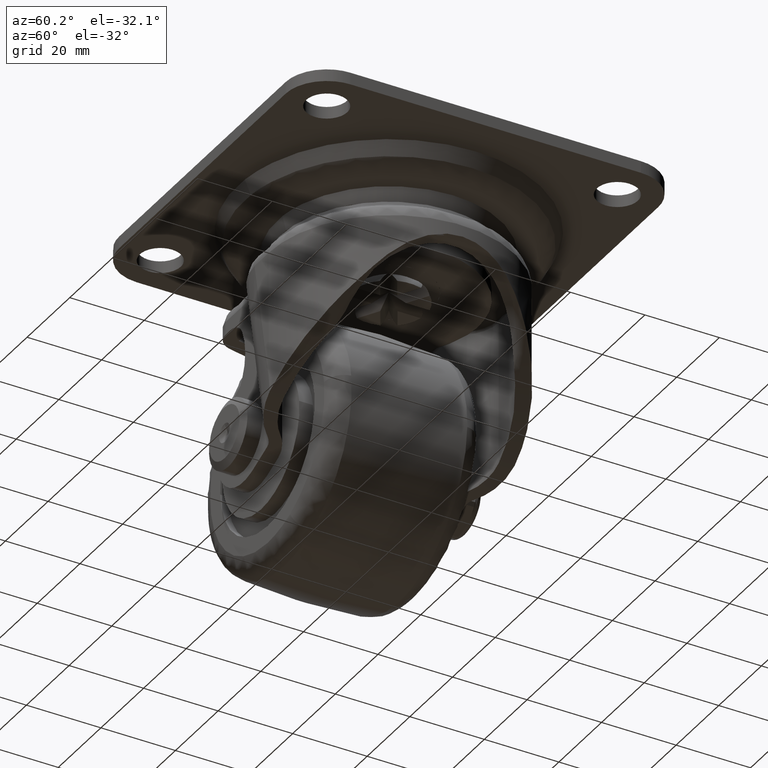
[diagram: clean part render]
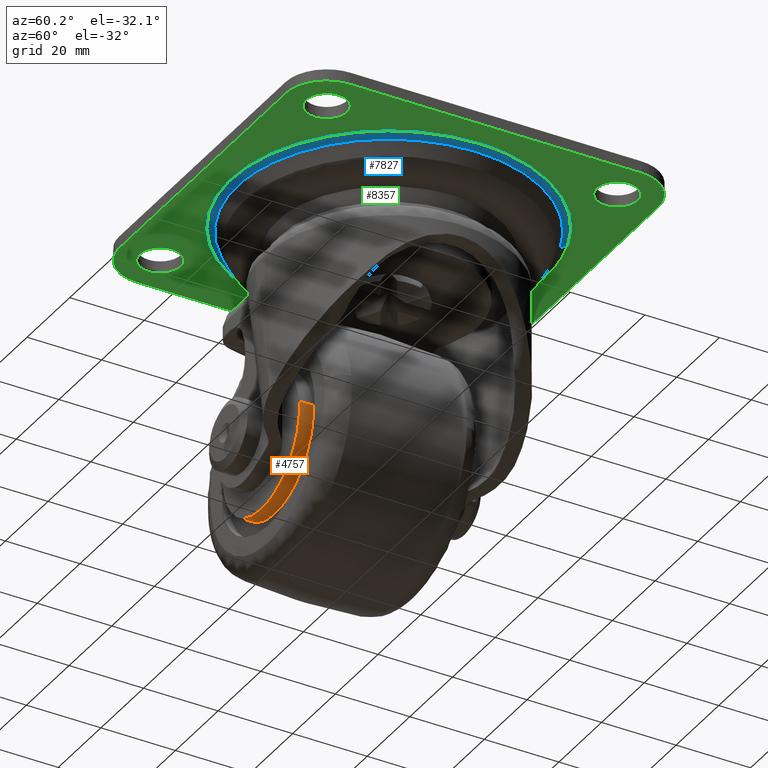
[diagram: same view with three faces highlighted in distinct colors, each labeled with its STEP entity id]
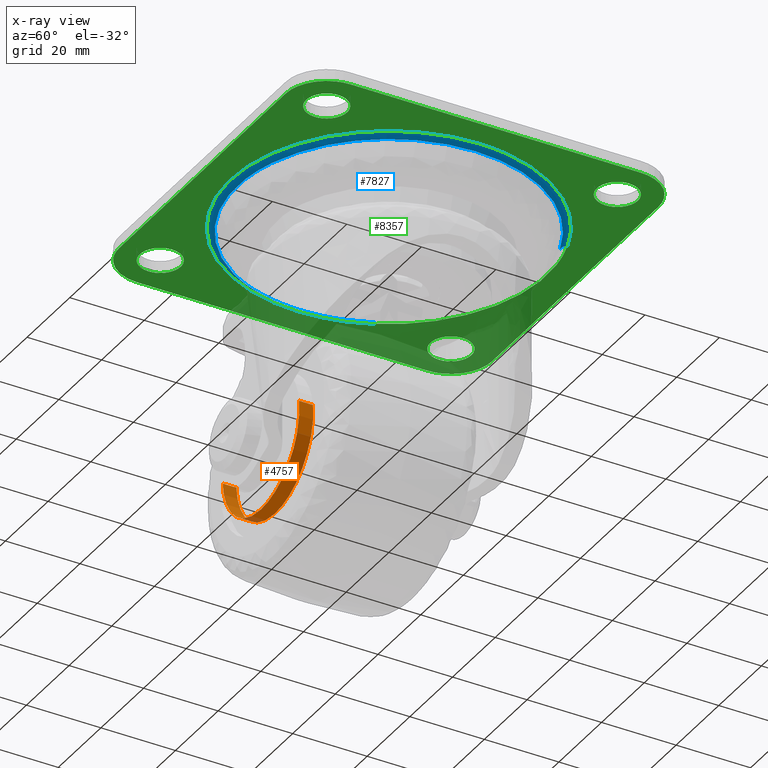
[diagram: x-ray of the same camera — body ghosted, the three highlighted faces saturated]
A machine part, auxiliary view with three faces highlighted in distinct colors.
The next image is the same camera in x-ray (body ghosted, the three faces saturated) — at least one of them is partly hidden behind the body in this view.
Their STEP definitions:

[orange] entity #4757 — the highlighted face is a freeform B-spline surface patch.
#4651=CARTESIAN_POINT('',(17.842643459764481,-21.792500000000008,-55.110141923961322));
#4652=CARTESIAN_POINT('',(17.858451913769652,-21.792500000000004,-55.243136774733770));
#4653=CARTESIAN_POINT('',(17.934977078074905,-21.792500000000008,-55.886934884516407));
#4654=CARTESIAN_POINT('',(17.966426371593599,-21.792500000000000,-56.401126288372573));
#4655=CARTESIAN_POINT('',(19.065300083221029,-21.792500000000000,-74.367552659966179));
#4656=CARTESIAN_POINT('',(1.098873711627426,-21.792500000000000,-75.466426371593599));
#4657=CARTESIAN_POINT('',(-16.867552659966176,-21.792500000000000,-76.565300083221018));
#4658=CARTESIAN_POINT('',(-17.974329302976994,-21.792500000000008,-58.469661925671524));
#4659=CARTESIAN_POINT('',(-17.982185289167688,-21.792500000000018,-58.341217686831406));
#4660=CARTESIAN_POINT('',(17.842643459764481,-17.905187499999997,-55.110141923961322));
#4661=CARTESIAN_POINT('',(17.858451913769652,-17.905187499999993,-55.243136774733770));
#4662=CARTESIAN_POINT('',(17.934977078074905,-17.905187499999997,-55.886934884516407));
#4663=CARTESIAN_POINT('',(17.966426371593599,-17.905187500000000,-56.401126288372573));
#4664=CARTESIAN_POINT('',(19.065300083221029,-17.905187500000004,-74.367552659966179));
#4665=CARTESIAN_POINT('',(1.098873711627426,-17.905187500000000,-75.466426371593599));
#4666=CARTESIAN_POINT('',(-16.867552659966176,-17.905187500000004,-76.565300083221018));
#4667=CARTESIAN_POINT('',(-17.974329302976994,-17.905187500000004,-58.469661925671524));
#4668=CARTESIAN_POINT('',(-17.982185289167688,-17.905187500000004,-58.341217686831406));
#4676=(BOUNDED_SURFACE()B_SPLINE_SURFACE(2,1,((#4651,#4660),(#4652,#4661),(#4653,#4662),(#4654,#4663),(#4655,#4664),(#4656,#4665),(#4657,#4666),(#4658,#4667),(#4659,#4668)),.UNSPECIFIED.,.F.,.F.,.U.)B_SPLINE_SURFACE_WITH_KNOTS((3,1,2,2,1,3),(2,2),(0.0,0.304178347177604,1.497113406812118,31.320489897674950,61.143866388537766,61.448100504643662),(0.0,3.887312500000011),.UNSPECIFIED.)GEOMETRIC_REPRESENTATION_ITEM()RATIONAL_B_SPLINE_SURFACE(((0.972009143955653,0.972009143955653),(0.974757472375390,0.974757472375390),(0.988284271247462,0.988284271247462),(1.0,1.0),(0.707106781186548,0.707106781186548),(1.0,1.0),(0.707106781186548,0.707106781186548),(1.002987861202316,1.002987861202316),(1.005975722404632,1.005975722404632)))REPRESENTATION_ITEM('')SURFACE());
#4677=CARTESIAN_POINT('',(17.874173578703068,-17.999999999999229,-55.375401478378720));
#4678=VERTEX_POINT('',#4677);
#4679=CARTESIAN_POINT('',(0.0,-18.0,-75.500000000000000));
#4680=VERTEX_POINT('',#4679);
#4681=CARTESIAN_POINT('',(17.874173578703061,-17.999999999999229,-55.375401478378720));
#4682=CARTESIAN_POINT('',(18.000000000000004,-18.000000000000004,-56.433974790937192));
#4683=CARTESIAN_POINT('',(18.0,-18.0,-57.500000000000000));
#4684=CARTESIAN_POINT('',(18.000000000000007,-18.000000000000007,-75.500000000000014));
#4685=CARTESIAN_POINT('',(0.0,-18.0,-75.500000000000000));
#4693=(BOUNDED_CURVE()B_SPLINE_CURVE(2,(#4681,#4682,#4683,#4684,#4685),.UNSPECIFIED.,.F.,.U.)B_SPLINE_CURVE_WITH_KNOTS((3,2,3),(0.229562640892888,0.250000000000000,0.500000000000000),.UNSPECIFIED.)CURVE()GEOMETRIC_REPRESENTATION_ITEM()RATIONAL_B_SPLINE_CURVE((0.956027082254396,0.976056144428286,1.0,0.707106781186547,1.0))REPRESENTATION_ITEM(''));
#4694=EDGE_CURVE('',#4678,#4680,#4693,.T.);
#4695=ORIENTED_EDGE('',*,*,#4694,.F.);
#4696=CARTESIAN_POINT('',(17.874173552712360,-21.699999999999999,-55.375401259717968));
#4697=VERTEX_POINT('',#4696);
#4698=CARTESIAN_POINT('',(17.874173552712360,-21.699999999999999,-55.375401259717968));
#4699=CARTESIAN_POINT('',(17.874173578703068,-17.999999999999229,-55.375401478378720));
#4700=QUASI_UNIFORM_CURVE('',1,(#4698,#4699),.UNSPECIFIED.,.F.,.U.);
#4701=EDGE_CURVE('',#4697,#4678,#4700,.T.);
#4702=ORIENTED_EDGE('',*,*,#4701,.F.);
#4703=CARTESIAN_POINT('',(0.0,-21.699999999999999,-75.500000000000000));
#4704=VERTEX_POINT('',#4703);
#4705=CARTESIAN_POINT('',(17.874173552712360,-21.699999999999996,-55.375401259717975));
#4706=CARTESIAN_POINT('',(18.0,-21.700000000000003,-56.433974680451030));
#4707=CARTESIAN_POINT('',(18.0,-21.699999999999999,-57.500000000000000));
#4708=CARTESIAN_POINT('',(18.000000000000007,-21.699999999999999,-75.500000000000014));
#4709=CARTESIAN_POINT('',(0.0,-21.699999999999999,-75.500000000000000));
#4717=(BOUNDED_CURVE()B_SPLINE_CURVE(2,(#4705,#4706,#4707,#4708,#4709),.UNSPECIFIED.,.F.,.U.)B_SPLINE_CURVE_WITH_KNOTS((3,2,3),(0.229562638825414,0.250000000000000,0.500000000000000),.UNSPECIFIED.)CURVE()GEOMETRIC_REPRESENTATION_ITEM()RATIONAL_B_SPLINE_CURVE((0.956027078202056,0.976056142006090,1.0,0.707106781186547,1.0))REPRESENTATION_ITEM(''));
#4718=EDGE_CURVE('',#4697,#4704,#4717,.T.);
#4719=ORIENTED_EDGE('',*,*,#4718,.T.);
#4720=CARTESIAN_POINT('',(-17.966428203972999,-21.699999999999999,-58.598843751669278));
#4721=VERTEX_POINT('',#4720);
#4722=CARTESIAN_POINT('',(0.0,-21.699999999999999,-75.500000000000000));
#4723=CARTESIAN_POINT('',(-16.932737493266956,-21.699999999999999,-75.500000000000000));
#4724=CARTESIAN_POINT('',(-17.966428203972995,-21.700000000000003,-58.598843751669278));
#4732=(BOUNDED_CURVE()B_SPLINE_CURVE(2,(#4722,#4723,#4724),.UNSPECIFIED.,.F.,.U.)B_SPLINE_CURVE_WITH_KNOTS((3,3),(0.500000000000000,0.739333249972850),.UNSPECIFIED.)CURVE()GEOMETRIC_REPRESENTATION_ITEM()RATIONAL_B_SPLINE_CURVE((1.0,0.719603656185469,0.976072658336030))REPRESENTATION_ITEM(''));
#4733=EDGE_CURVE('',#4704,#4721,#4732,.T.);
#4734=ORIENTED_EDGE('',*,*,#4733,.T.);
#4735=CARTESIAN_POINT('',(-17.966428226879739,-17.999999999998810,-58.598843377126677));
#4736=VERTEX_POINT('',#4735);
#4737=CARTESIAN_POINT('',(-17.966428203972999,-21.699999999999999,-58.598843751669278));
#4738=CARTESIAN_POINT('',(-17.966428226879739,-17.999999999998810,-58.598843377126677));
#4739=QUASI_UNIFORM_CURVE('',1,(#4737,#4738),.UNSPECIFIED.,.F.,.U.);
#4740=EDGE_CURVE('',#4721,#4736,#4739,.T.);
#4741=ORIENTED_EDGE('',*,*,#4740,.T.);
#4742=CARTESIAN_POINT('',(0.0,-18.0,-75.500000000000000));
#4743=CARTESIAN_POINT('',(-16.932737846919977,-18.000000000000007,-75.499999999999986));
#4744=CARTESIAN_POINT('',(-17.966428226879742,-17.999999999998806,-58.598843377126677));
#4752=(BOUNDED_CURVE()B_SPLINE_CURVE(2,(#4742,#4743,#4744),.UNSPECIFIED.,.F.,.U.)B_SPLINE_CURVE_WITH_KNOTS((3,3),(0.500000000000000,0.739333253569901),.UNSPECIFIED.)CURVE()GEOMETRIC_REPRESENTATION_ITEM()RATIONAL_B_SPLINE_CURVE((1.0,0.719603651971261,0.976072666045214))REPRESENTATION_ITEM(''));
#4753=EDGE_CURVE('',#4680,#4736,#4752,.T.);
#4754=ORIENTED_EDGE('',*,*,#4753,.F.);
#4755=EDGE_LOOP('',(#4695,#4702,#4719,#4734,#4741,#4754));
#4756=FACE_OUTER_BOUND('',#4755,.T.);
#4757=ADVANCED_FACE('',(#4756),#4676,.T.);

[blue] entity #7827 — the highlighted face is a freeform B-spline surface patch.
#5985=CARTESIAN_POINT('',(3.184360529721398,-40.461136844316670,-4.345675039741234));
#5986=VERTEX_POINT('',#5985);
#5992=CARTESIAN_POINT('',(-37.739710467579357,-14.931778210949810,-4.345675039742618));
#5993=VERTEX_POINT('',#5992);
#5994=CARTESIAN_POINT('',(3.184360529721398,-40.461136844316670,-4.345675039741234));
#5995=CARTESIAN_POINT('',(1.594638133456213,-40.586250710279998,-4.345675039742931));
#5996=CARTESIAN_POINT('',(0.0,-40.586250710279998,-4.345675039742931));
#5997=CARTESIAN_POINT('',(-27.589476437351475,-40.586250710280005,-4.345675039742930));
#5998=CARTESIAN_POINT('',(-37.739710467579364,-14.931778210949812,-4.345675039742617));
#6006=(BOUNDED_CURVE()B_SPLINE_CURVE(2,(#5994,#5995,#5996,#5997,#5998),.UNSPECIFIED.,.F.,.U.)B_SPLINE_CURVE_WITH_KNOTS((3,2,3),(0.736331300632689,0.750000000000000,0.937532549939446),.UNSPECIFIED.)CURVE()GEOMETRIC_REPRESENTATION_ITEM()RATIONAL_B_SPLINE_CURVE((0.969723356171653,0.983986122581260,1.0,0.780291951263764,0.890203187501340))REPRESENTATION_ITEM(''));
#6007=EDGE_CURVE('',#5986,#5993,#6006,.T.);
#6059=CARTESIAN_POINT('',(-40.586250710279998,0.0,-4.345675039742931));
#6060=VERTEX_POINT('',#6059);
#6061=CARTESIAN_POINT('',(-37.739710467579357,-14.931778210949812,-4.345675039742618));
#6062=CARTESIAN_POINT('',(-40.586250710279998,-7.737216178475551,-4.345675039742932));
#6063=CARTESIAN_POINT('',(-40.586250710279998,0.0,-4.345675039742931));
#6071=(BOUNDED_CURVE()B_SPLINE_CURVE(2,(#6061,#6062,#6063),.UNSPECIFIED.,.F.,.U.)B_SPLINE_CURVE_WITH_KNOTS((3,3),(0.937532549939447,1.0),.UNSPECIFIED.)CURVE()GEOMETRIC_REPRESENTATION_ITEM()RATIONAL_B_SPLINE_CURVE((0.890203187501341,0.926814829922784,1.0))REPRESENTATION_ITEM(''));
#6072=EDGE_CURVE('',#5993,#6060,#6071,.T.);
#6074=CARTESIAN_POINT('',(-36.723537601119311,17.280785074846360,-4.345675039060930));
#6075=VERTEX_POINT('',#6074);
#6076=CARTESIAN_POINT('',(-40.586250710279998,0.0,-4.345675039742931));
#6077=CARTESIAN_POINT('',(-40.586250710280012,9.072101875255141,-4.345675039742931));
#6078=CARTESIAN_POINT('',(-36.723537601119311,17.280785074846360,-4.345675039060930));
#6086=(BOUNDED_CURVE()B_SPLINE_CURVE(2,(#6076,#6077,#6078),.UNSPECIFIED.,.F.,.U.)B_SPLINE_CURVE_WITH_KNOTS((3,3),(0.0,0.072331535363557),.UNSPECIFIED.)CURVE()GEOMETRIC_REPRESENTATION_ITEM()RATIONAL_B_SPLINE_CURVE((1.0,0.915258335142595,0.879552628112391))REPRESENTATION_ITEM(''));
#6087=EDGE_CURVE('',#6060,#6075,#6086,.T.);
#6089=CARTESIAN_POINT('',(12.924949975057990,38.473229847753103,-4.345675038228174));
#6090=VERTEX_POINT('',#6089);
#6106=CARTESIAN_POINT('',(40.586250710279998,0.0,-4.345675039742931));
#6107=VERTEX_POINT('',#6106);
#6108=CARTESIAN_POINT('',(12.924949975057990,38.473229847753096,-4.345675038228174));
#6109=CARTESIAN_POINT('',(40.586250710279991,29.180510476585447,-4.345675039742931));
#6110=CARTESIAN_POINT('',(40.586250710279998,0.0,-4.345675039742931));
#6118=(BOUNDED_CURVE()B_SPLINE_CURVE(2,(#6108,#6109,#6110),.UNSPECIFIED.,.F.,.U.)B_SPLINE_CURVE_WITH_KNOTS((3,3),(0.304134442289339,0.500000000000000),.UNSPECIFIED.)CURVE()GEOMETRIC_REPRESENTATION_ITEM()RATIONAL_B_SPLINE_CURVE((0.900621820758164,0.770529225389729,1.0))REPRESENTATION_ITEM(''));
#6119=EDGE_CURVE('',#6090,#6107,#6118,.T.);
#6121=CARTESIAN_POINT('',(40.586250710279998,0.0,-4.345675039742931));
#6122=CARTESIAN_POINT('',(40.586250710279984,-37.517544248621746,-4.345675039742932));
#6123=CARTESIAN_POINT('',(3.184360529721398,-40.461136844316670,-4.345675039741234));
#6131=(BOUNDED_CURVE()B_SPLINE_CURVE(2,(#6121,#6122,#6123),.UNSPECIFIED.,.F.,.U.)B_SPLINE_CURVE_WITH_KNOTS((3,3),(0.500000000000000,0.736331300632688),.UNSPECIFIED.)CURVE()GEOMETRIC_REPRESENTATION_ITEM()RATIONAL_B_SPLINE_CURVE((1.0,0.723120658605289,0.969723356171652))REPRESENTATION_ITEM(''));
#6132=EDGE_CURVE('',#6107,#5986,#6131,.T.);
#7710=CARTESIAN_POINT('',(12.911361618614468,38.432767524562884,-4.442584820417171));
#7711=CARTESIAN_POINT('',(15.137609367942042,37.684866928389972,-4.442584820417170));
#7712=CARTESIAN_POINT('',(17.262611514969574,36.684916820499474,-4.442584820417169));
#7713=CARTESIAN_POINT('',(53.947528335469038,19.422305305529903,-4.442584820417168));
#7714=CARTESIAN_POINT('',(36.684916820499474,-17.262611514969574,-4.442584820417169));
#7715=CARTESIAN_POINT('',(19.422305305529903,-53.947528335469038,-4.442584820417168));
#7716=CARTESIAN_POINT('',(-17.262611514969574,-36.684916820499474,-4.442584820417169));
#7717=CARTESIAN_POINT('',(-53.947528335469038,-19.422305305529903,-4.442584820417168));
#7718=CARTESIAN_POINT('',(-36.684916820499474,17.262611514969564,-4.442584820417169));
#7719=CARTESIAN_POINT('',(13.082746138751203,38.942921419581033,-3.127357144926398));
#7720=CARTESIAN_POINT('',(15.338544946556913,38.185093242679535,-3.127357144926397));
#7721=CARTESIAN_POINT('',(17.491754224947957,37.171869866293896,-3.127357144926398));
#7722=CARTESIAN_POINT('',(54.663624091241864,19.680115641345953,-3.127357144926397));
#7723=CARTESIAN_POINT('',(37.171869866293896,-17.491754224947943,-3.127357144926398));
#7724=CARTESIAN_POINT('',(19.680115641345953,-54.663624091241864,-3.127357144926397));
#7725=CARTESIAN_POINT('',(-17.491754224947943,-37.171869866293910,-3.127357144926398));
#7726=CARTESIAN_POINT('',(-54.663624091241864,-19.680115641345971,-3.127357144926397));
#7727=CARTESIAN_POINT('',(-37.171869866293910,17.491754224947943,-3.127357144926398));
#7728=CARTESIAN_POINT('',(13.534658023324662,40.288110634664172,-3.202823116906489));
#7729=CARTESIAN_POINT('',(15.868377955613120,39.504105112733235,-3.202823116906488));
#7730=CARTESIAN_POINT('',(18.095964650836891,38.455882380657293,-3.202823116906489));
#7731=CARTESIAN_POINT('',(56.551847031494169,20.359917729820399,-3.202823116906488));
#7732=CARTESIAN_POINT('',(38.455882380657293,-18.095964650836891,-3.202823116906489));
#7733=CARTESIAN_POINT('',(20.359917729820399,-56.551847031494169,-3.202823116906488));
#7734=CARTESIAN_POINT('',(-18.095964650836880,-38.455882380657293,-3.202823116906489));
#7735=CARTESIAN_POINT('',(-56.551847031494169,-20.359917729820399,-3.202823116906488));
#7736=CARTESIAN_POINT('',(-38.455882380657293,18.095964650836880,-3.202823116906489));
#7744=(BOUNDED_SURFACE()B_SPLINE_SURFACE(2,2,((#7710,#7719,#7728),(#7711,#7720,#7729),(#7712,#7721,#7730),(#7713,#7722,#7731),(#7714,#7723,#7732),(#7715,#7724,#7733),(#7716,#7725,#7734),(#7717,#7726,#7735),(#7718,#7727,#7736)),.UNSPECIFIED.,.F.,.F.,.U.)B_SPLINE_SURFACE_WITH_KNOTS((3,2,2,2,3),(3,3),(0.0,5.633406402039420,76.051053583033720,146.468700764028000,216.886347945022290),(0.0,2.552755658797147),.UNSPECIFIED.)GEOMETRIC_REPRESENTATION_ITEM()RATIONAL_B_SPLINE_SURFACE(((0.882743036280426,0.718345380574617,0.879689439059385),(0.900900378691654,0.733121190191396,0.897783971334424),(0.922516258587970,0.750711436539873,0.919325077272670),(0.652317502202397,0.530833147491639,0.650060996254352),(0.922516258587970,0.750711436539873,0.919325077272670),(0.652317502202397,0.530833147491639,0.650060996254352),(0.922516258587970,0.750711436539873,0.919325077272670),(0.652317502202397,0.530833147491639,0.650060996254352),(0.922516258587970,0.750711436539873,0.919325077272670)))REPRESENTATION_ITEM('')SURFACE());
#7745=ORIENTED_EDGE('',*,*,#6119,.F.);
#7746=CARTESIAN_POINT('',(13.500830320760921,40.187431987613181,-3.200000500000001));
#7747=VERTEX_POINT('',#7746);
#7748=CARTESIAN_POINT('',(12.924949975057988,38.473229847753110,-4.345675038228175));
#7749=CARTESIAN_POINT('',(13.097316249135902,38.986306284760040,-3.200001000761956));
#7750=CARTESIAN_POINT('',(13.500830320760924,40.187431987613188,-3.200000500000001));
#7758=(BOUNDED_CURVE()B_SPLINE_CURVE(2,(#7748,#7749,#7750),.UNSPECIFIED.,.F.,.U.)B_SPLINE_CURVE_WITH_KNOTS((3,3),(-1.661306527101288,-0.352191795974391),.UNSPECIFIED.)CURVE()GEOMETRIC_REPRESENTATION_ITEM()RATIONAL_B_SPLINE_CURVE((0.868483051895807,0.732466660224545,0.865706739969151))REPRESENTATION_ITEM(''));
#7759=EDGE_CURVE('',#6090,#7747,#7758,.T.);
#7760=ORIENTED_EDGE('',*,*,#7759,.T.);
#7761=CARTESIAN_POINT('',(42.394599999999997,0.0,-3.200000000000000));
#7762=VERTEX_POINT('',#7761);
#7763=CARTESIAN_POINT('',(13.500830320760921,40.187431987613188,-3.200000500000000));
#7764=CARTESIAN_POINT('',(42.394599999999983,30.480668891571192,-3.200000000000000));
#7765=CARTESIAN_POINT('',(42.394599999999997,0.0,-3.200000000000000));
#7773=(BOUNDED_CURVE()B_SPLINE_CURVE(2,(#7763,#7764,#7765),.UNSPECIFIED.,.F.,.U.)B_SPLINE_CURVE_WITH_KNOTS((3,3),(0.304134442289376,0.500000000000000),.UNSPECIFIED.)CURVE()GEOMETRIC_REPRESENTATION_ITEM()RATIONAL_B_SPLINE_CURVE((0.900621820758114,0.770529225389774,1.0))REPRESENTATION_ITEM(''));
#7774=EDGE_CURVE('',#7747,#7762,#7773,.T.);
#7775=ORIENTED_EDGE('',*,*,#7774,.T.);
#7776=CARTESIAN_POINT('',(-42.394599999999997,0.0,-3.200000000000000));
#7777=VERTEX_POINT('',#7776);
#7778=CARTESIAN_POINT('',(42.394599999999997,0.0,-3.200000000000000));
#7779=CARTESIAN_POINT('',(42.394600000000004,-42.394600000000004,-3.200000000000000));
#7780=CARTESIAN_POINT('',(0.0,-42.394599999999997,-3.200000000000000));
#7781=CARTESIAN_POINT('',(-42.394600000000004,-42.394600000000004,-3.200000000000000));
#7782=CARTESIAN_POINT('',(-42.394599999999997,0.0,-3.200000000000000));
#7790=(BOUNDED_CURVE()B_SPLINE_CURVE(2,(#7778,#7779,#7780,#7781,#7782),.UNSPECIFIED.,.F.,.U.)B_SPLINE_CURVE_WITH_KNOTS((3,2,3),(0.500000000000000,0.750000000000000,1.0),.UNSPECIFIED.)CURVE()GEOMETRIC_REPRESENTATION_ITEM()RATIONAL_B_SPLINE_CURVE((1.0,0.707106781186548,1.0,0.707106781186548,1.0))REPRESENTATION_ITEM(''));
#7791=EDGE_CURVE('',#7762,#7777,#7790,.T.);
#7792=ORIENTED_EDGE('',*,*,#7791,.T.);
#7793=CARTESIAN_POINT('',(-38.359780954705613,18.050742752532361,-3.200000500000001));
#7794=VERTEX_POINT('',#7793);
#7795=CARTESIAN_POINT('',(-42.394599999999997,0.0,-3.200000000000000));
#7796=CARTESIAN_POINT('',(-42.394600000000004,9.476315831947286,-3.200000000000000));
#7797=CARTESIAN_POINT('',(-38.359780954705606,18.050742752532361,-3.200000500000001));
#7805=(BOUNDED_CURVE()B_SPLINE_CURVE(2,(#7795,#7796,#7797),.UNSPECIFIED.,.F.,.U.)B_SPLINE_CURVE_WITH_KNOTS((3,3),(0.0,0.072331535364334),.UNSPECIFIED.)CURVE()GEOMETRIC_REPRESENTATION_ITEM()RATIONAL_B_SPLINE_CURVE((1.0,0.915258335141684,0.879552628111623))REPRESENTATION_ITEM(''));
#7806=EDGE_CURVE('',#7777,#7794,#7805,.T.);
#7807=ORIENTED_EDGE('',*,*,#7806,.T.);
#7808=CARTESIAN_POINT('',(-36.723537601119311,17.280785074846367,-4.345675039060930));
#7809=CARTESIAN_POINT('',(-37.213280255861712,17.511240475149648,-3.200001005214054));
#7810=CARTESIAN_POINT('',(-38.359780954705599,18.050742752532358,-3.200000500000002));
#7818=(BOUNDED_CURVE()B_SPLINE_CURVE(2,(#7808,#7809,#7810),.UNSPECIFIED.,.F.,.U.)B_SPLINE_CURVE_WITH_KNOTS((3,3),(-1.661306528229544,-0.352191800264891),.UNSPECIFIED.)CURVE()GEOMETRIC_REPRESENTATION_ITEM()RATIONAL_B_SPLINE_CURVE((0.907613806512775,0.765469000574998,0.904712402697115))REPRESENTATION_ITEM(''));
#7819=EDGE_CURVE('',#6075,#7794,#7818,.T.);
#7820=ORIENTED_EDGE('',*,*,#7819,.F.);
#7821=ORIENTED_EDGE('',*,*,#6087,.F.);
#7822=ORIENTED_EDGE('',*,*,#6072,.F.);
#7823=ORIENTED_EDGE('',*,*,#6007,.F.);
#7824=ORIENTED_EDGE('',*,*,#6132,.F.);
#7825=EDGE_LOOP('',(#7745,#7760,#7775,#7792,#7807,#7820,#7821,#7822,#7823,#7824));
#7826=FACE_OUTER_BOUND('',#7825,.T.);
#7827=ADVANCED_FACE('',(#7826),#7744,.F.);

[green] entity #8357 — the highlighted face is a freeform B-spline surface patch.
#6254=CARTESIAN_POINT('',(-38.664233032356691,44.489741391307938,-3.200000000000000));
#6255=VERTEX_POINT('',#6254);
#6261=CARTESIAN_POINT('',(-33.500000000000000,39.0,-3.200000000000000));
#6262=VERTEX_POINT('',#6261);
#6263=CARTESIAN_POINT('',(-33.500000000000000,39.0,-3.200000000000000));
#6264=CARTESIAN_POINT('',(-33.500000000000000,44.173883367600588,-3.200000000000000));
#6265=CARTESIAN_POINT('',(-38.664233032356691,44.489741391307938,-3.200000000000000));
#6273=(BOUNDED_CURVE()B_SPLINE_CURVE(2,(#6263,#6264,#6265),.UNSPECIFIED.,.F.,.U.)B_SPLINE_CURVE_WITH_KNOTS((3,3),(0.500000000000000,0.739332962229295),.UNSPECIFIED.)CURVE()GEOMETRIC_REPRESENTATION_ITEM()RATIONAL_B_SPLINE_CURVE((1.0,0.719603993298013,0.976072041646040))REPRESENTATION_ITEM(''));
#6274=EDGE_CURVE('',#6262,#6255,#6273,.T.);
#6276=CARTESIAN_POINT('',(-39.649179250865487,33.538446530504089,-3.200000000000000));
#6277=VERTEX_POINT('',#6276);
#6278=CARTESIAN_POINT('',(-39.649179250865494,33.538446530504096,-3.200000000000000));
#6279=CARTESIAN_POINT('',(-39.325728090429756,33.500000000000000,-3.200000000000001));
#6280=CARTESIAN_POINT('',(-39.0,33.500000000000000,-3.200000000000000));
#6281=CARTESIAN_POINT('',(-33.500000000000007,33.500000000000007,-3.200000000000000));
#6282=CARTESIAN_POINT('',(-33.500000000000000,39.0,-3.200000000000000));
#6290=(BOUNDED_CURVE()B_SPLINE_CURVE(2,(#6278,#6279,#6280,#6281,#6282),.UNSPECIFIED.,.F.,.U.)B_SPLINE_CURVE_WITH_KNOTS((3,2,3),(0.229562753243201,0.250000000000000,0.500000000000000),.UNSPECIFIED.)CURVE()GEOMETRIC_REPRESENTATION_ITEM()RATIONAL_B_SPLINE_CURVE((0.956027302466078,0.976056276054866,1.0,0.707106781186548,1.0))REPRESENTATION_ITEM(''));
#6291=EDGE_CURVE('',#6277,#6262,#6290,.T.);
#6339=CARTESIAN_POINT('',(-44.500000000000000,39.0,-3.200000000000000));
#6340=VERTEX_POINT('',#6339);
#6341=CARTESIAN_POINT('',(-44.500000000000000,39.0,-3.200000000000000));
#6342=CARTESIAN_POINT('',(-44.499999999999993,34.115031964951029,-3.200000000000001));
#6343=CARTESIAN_POINT('',(-39.649179250865487,33.538446530504089,-3.200000000000000));
#6351=(BOUNDED_CURVE()B_SPLINE_CURVE(2,(#6341,#6342,#6343),.UNSPECIFIED.,.F.,.U.)B_SPLINE_CURVE_WITH_KNOTS((3,3),(0.0,0.229562753243201),.UNSPECIFIED.)CURVE()GEOMETRIC_REPRESENTATION_ITEM()RATIONAL_B_SPLINE_CURVE((1.0,0.731050505131682,0.956027302466078))REPRESENTATION_ITEM(''));
#6352=EDGE_CURVE('',#6340,#6277,#6351,.T.);
#6354=CARTESIAN_POINT('',(-38.664233032356691,44.489741391307938,-3.200000000000000));
#6355=CARTESIAN_POINT('',(-38.831959801655600,44.499999999999993,-3.200000000000001));
#6356=CARTESIAN_POINT('',(-39.0,44.500000000000000,-3.200000000000000));
#6357=CARTESIAN_POINT('',(-44.500000000000007,44.500000000000007,-3.200000000000000));
#6358=CARTESIAN_POINT('',(-44.500000000000000,39.0,-3.200000000000000));
#6366=(BOUNDED_CURVE()B_SPLINE_CURVE(2,(#6354,#6355,#6356,#6357,#6358),.UNSPECIFIED.,.F.,.U.)B_SPLINE_CURVE_WITH_KNOTS((3,2,3),(0.739332962229296,0.750000000000000,1.0),.UNSPECIFIED.)CURVE()GEOMETRIC_REPRESENTATION_ITEM()RATIONAL_B_SPLINE_CURVE((0.976072041646042,0.987502787888535,1.0,0.707106781186548,1.0))REPRESENTATION_ITEM(''));
#6367=EDGE_CURVE('',#6255,#6340,#6366,.T.);
#6444=CARTESIAN_POINT('',(39.335766967643309,44.489741391307938,-3.200000000000000));
#6445=VERTEX_POINT('',#6444);
#6451=CARTESIAN_POINT('',(44.500000000000000,39.0,-3.200000000000000));
#6452=VERTEX_POINT('',#6451);
#6453=CARTESIAN_POINT('',(44.500000000000000,39.0,-3.200000000000000));
#6454=CARTESIAN_POINT('',(44.500000000000007,44.173883367600588,-3.200000000000000));
#6455=CARTESIAN_POINT('',(39.335766967643316,44.489741391307938,-3.200000000000000));
#6463=(BOUNDED_CURVE()B_SPLINE_CURVE(2,(#6453,#6454,#6455),.UNSPECIFIED.,.F.,.U.)B_SPLINE_CURVE_WITH_KNOTS((3,3),(0.500000000000000,0.739332962229295),.UNSPECIFIED.)CURVE()GEOMETRIC_REPRESENTATION_ITEM()RATIONAL_B_SPLINE_CURVE((1.0,0.719603993298013,0.976072041646040))REPRESENTATION_ITEM(''));
#6464=EDGE_CURVE('',#6452,#6445,#6463,.T.);
#6466=CARTESIAN_POINT('',(38.350820749134499,33.538446530504089,-3.200000000000000));
#6467=VERTEX_POINT('',#6466);
#6468=CARTESIAN_POINT('',(38.350820749134499,33.538446530504089,-3.200000000000000));
#6469=CARTESIAN_POINT('',(38.674271909570237,33.500000000000000,-3.200000000000000));
#6470=CARTESIAN_POINT('',(39.0,33.500000000000000,-3.200000000000000));
#6471=CARTESIAN_POINT('',(44.500000000000007,33.500000000000007,-3.200000000000000));
#6472=CARTESIAN_POINT('',(44.500000000000000,39.0,-3.200000000000000));
#6480=(BOUNDED_CURVE()B_SPLINE_CURVE(2,(#6468,#6469,#6470,#6471,#6472),.UNSPECIFIED.,.F.,.U.)B_SPLINE_CURVE_WITH_KNOTS((3,2,3),(0.229562753243201,0.250000000000000,0.500000000000000),.UNSPECIFIED.)CURVE()GEOMETRIC_REPRESENTATION_ITEM()RATIONAL_B_SPLINE_CURVE((0.956027302466077,0.976056276054865,1.0,0.707106781186548,1.0))REPRESENTATION_ITEM(''));
#6481=EDGE_CURVE('',#6467,#6452,#6480,.T.);
#6529=CARTESIAN_POINT('',(33.500000000000000,39.0,-3.200000000000000));
#6530=VERTEX_POINT('',#6529);
#6531=CARTESIAN_POINT('',(33.500000000000000,39.0,-3.200000000000000));
#6532=CARTESIAN_POINT('',(33.500000000000007,34.115031964951037,-3.199999999999999));
#6533=CARTESIAN_POINT('',(38.350820749134499,33.538446530504089,-3.200000000000001));
#6541=(BOUNDED_CURVE()B_SPLINE_CURVE(2,(#6531,#6532,#6533),.UNSPECIFIED.,.F.,.U.)B_SPLINE_CURVE_WITH_KNOTS((3,3),(0.0,0.229562753243201),.UNSPECIFIED.)CURVE()GEOMETRIC_REPRESENTATION_ITEM()RATIONAL_B_SPLINE_CURVE((1.0,0.731050505131683,0.956027302466077))REPRESENTATION_ITEM(''));
#6542=EDGE_CURVE('',#6530,#6467,#6541,.T.);
#6544=CARTESIAN_POINT('',(39.335766967643309,44.489741391307938,-3.200000000000001));
#6545=CARTESIAN_POINT('',(39.168040198344400,44.500000000000000,-3.200000000000000));
#6546=CARTESIAN_POINT('',(39.0,44.500000000000000,-3.200000000000000));
#6547=CARTESIAN_POINT('',(33.500000000000007,44.500000000000007,-3.200000000000000));
#6548=CARTESIAN_POINT('',(33.500000000000000,39.0,-3.200000000000000));
#6556=(BOUNDED_CURVE()B_SPLINE_CURVE(2,(#6544,#6545,#6546,#6547,#6548),.UNSPECIFIED.,.F.,.U.)B_SPLINE_CURVE_WITH_KNOTS((3,2,3),(0.739332962229296,0.750000000000000,1.0),.UNSPECIFIED.)CURVE()GEOMETRIC_REPRESENTATION_ITEM()RATIONAL_B_SPLINE_CURVE((0.976072041646042,0.987502787888535,1.0,0.707106781186548,1.0))REPRESENTATION_ITEM(''));
#6557=EDGE_CURVE('',#6445,#6530,#6556,.T.);
#6634=CARTESIAN_POINT('',(39.335766967643309,-33.510260508692113,-3.200000000000000));
#6635=VERTEX_POINT('',#6634);
#6641=CARTESIAN_POINT('',(44.500000000000000,-39.000001900000044,-3.200000000000000));
#6642=VERTEX_POINT('',#6641);
#6643=CARTESIAN_POINT('',(44.500000000000000,-39.000001900000044,-3.200000000000000));
#6644=CARTESIAN_POINT('',(44.500000000000007,-33.826118532399448,-3.200000000000000));
#6645=CARTESIAN_POINT('',(39.335766967643316,-33.510260508692113,-3.200000000000000));
#6653=(BOUNDED_CURVE()B_SPLINE_CURVE(2,(#6643,#6644,#6645),.UNSPECIFIED.,.F.,.U.)B_SPLINE_CURVE_WITH_KNOTS((3,3),(0.500000000000000,0.739332962229295),.UNSPECIFIED.)CURVE()GEOMETRIC_REPRESENTATION_ITEM()RATIONAL_B_SPLINE_CURVE((1.0,0.719603993298013,0.976072041646040))REPRESENTATION_ITEM(''));
#6654=EDGE_CURVE('',#6642,#6635,#6653,.T.);
#6656=CARTESIAN_POINT('',(38.350820749134499,-44.461555369495947,-3.200000000000000));
#6657=VERTEX_POINT('',#6656);
#6658=CARTESIAN_POINT('',(38.350820749134499,-44.461555369495954,-3.200000000000000));
#6659=CARTESIAN_POINT('',(38.674271909570230,-44.500001900000036,-3.200000000000001));
#6660=CARTESIAN_POINT('',(39.0,-44.500001900000044,-3.200000000000000));
#6661=CARTESIAN_POINT('',(44.500000000000007,-44.500001900000036,-3.200000000000000));
#6662=CARTESIAN_POINT('',(44.500000000000000,-39.000001900000044,-3.200000000000000));
#6670=(BOUNDED_CURVE()B_SPLINE_CURVE(2,(#6658,#6659,#6660,#6661,#6662),.UNSPECIFIED.,.F.,.U.)B_SPLINE_CURVE_WITH_KNOTS((3,2,3),(0.229562753243201,0.250000000000000,0.500000000000000),.UNSPECIFIED.)CURVE()GEOMETRIC_REPRESENTATION_ITEM()RATIONAL_B_SPLINE_CURVE((0.956027302466077,0.976056276054865,1.0,0.707106781186548,1.0))REPRESENTATION_ITEM(''));
#6671=EDGE_CURVE('',#6657,#6642,#6670,.T.);
#6719=CARTESIAN_POINT('',(33.500000000000000,-39.000001900000044,-3.200000000000000));
#6720=VERTEX_POINT('',#6719);
#6721=CARTESIAN_POINT('',(33.500000000000000,-39.000001900000044,-3.200000000000000));
#6722=CARTESIAN_POINT('',(33.499999999999993,-43.884969935049014,-3.200000000000000));
#6723=CARTESIAN_POINT('',(38.350820749134499,-44.461555369495954,-3.200000000000000));
#6731=(BOUNDED_CURVE()B_SPLINE_CURVE(2,(#6721,#6722,#6723),.UNSPECIFIED.,.F.,.U.)B_SPLINE_CURVE_WITH_KNOTS((3,3),(0.0,0.229562753243201),.UNSPECIFIED.)CURVE()GEOMETRIC_REPRESENTATION_ITEM()RATIONAL_B_SPLINE_CURVE((1.0,0.731050505131683,0.956027302466077))REPRESENTATION_ITEM(''));
#6732=EDGE_CURVE('',#6720,#6657,#6731,.T.);
#6734=CARTESIAN_POINT('',(39.335766967643309,-33.510260508692113,-3.200000000000000));
#6735=CARTESIAN_POINT('',(39.168040198344407,-33.500001900000065,-3.200000000000001));
#6736=CARTESIAN_POINT('',(39.0,-33.500001900000051,-3.200000000000000));
#6737=CARTESIAN_POINT('',(33.500000000000007,-33.500001900000065,-3.200000000000000));
#6738=CARTESIAN_POINT('',(33.500000000000000,-39.000001900000044,-3.200000000000000));
#6746=(BOUNDED_CURVE()B_SPLINE_CURVE(2,(#6734,#6735,#6736,#6737,#6738),.UNSPECIFIED.,.F.,.U.)B_SPLINE_CURVE_WITH_KNOTS((3,2,3),(0.739332962229296,0.750000000000000,1.0),.UNSPECIFIED.)CURVE()GEOMETRIC_REPRESENTATION_ITEM()RATIONAL_B_SPLINE_CURVE((0.976072041646042,0.987502787888535,1.0,0.707106781186548,1.0))REPRESENTATION_ITEM(''));
#6747=EDGE_CURVE('',#6635,#6720,#6746,.T.);
#6824=CARTESIAN_POINT('',(-38.664233032356691,-33.510260508692113,-3.200000000000000));
#6825=VERTEX_POINT('',#6824);
#6831=CARTESIAN_POINT('',(-33.500000000000000,-39.000001900000044,-3.200000000000000));
#6832=VERTEX_POINT('',#6831);
#6833=CARTESIAN_POINT('',(-33.500000000000000,-39.000001900000044,-3.200000000000000));
#6834=CARTESIAN_POINT('',(-33.500000000000000,-33.826118532399448,-3.200000000000000));
#6835=CARTESIAN_POINT('',(-38.664233032356691,-33.510260508692113,-3.200000000000000));
#6843=(BOUNDED_CURVE()B_SPLINE_CURVE(2,(#6833,#6834,#6835),.UNSPECIFIED.,.F.,.U.)B_SPLINE_CURVE_WITH_KNOTS((3,3),(0.500000000000000,0.739332962229295),.UNSPECIFIED.)CURVE()GEOMETRIC_REPRESENTATION_ITEM()RATIONAL_B_SPLINE_CURVE((1.0,0.719603993298013,0.976072041646040))REPRESENTATION_ITEM(''));
#6844=EDGE_CURVE('',#6832,#6825,#6843,.T.);
#6846=CARTESIAN_POINT('',(-39.649179250865487,-44.461555369495947,-3.200000000000000));
#6847=VERTEX_POINT('',#6846);
#6848=CARTESIAN_POINT('',(-39.649179250865487,-44.461555369495954,-3.200000000000000));
#6849=CARTESIAN_POINT('',(-39.325728090429763,-44.500001900000051,-3.200000000000000));
#6850=CARTESIAN_POINT('',(-39.0,-44.500001900000044,-3.200000000000000));
#6851=CARTESIAN_POINT('',(-33.500000000000007,-44.500001900000036,-3.200000000000000));
#6852=CARTESIAN_POINT('',(-33.500000000000000,-39.000001900000044,-3.200000000000000));
#6860=(BOUNDED_CURVE()B_SPLINE_CURVE(2,(#6848,#6849,#6850,#6851,#6852),.UNSPECIFIED.,.F.,.U.)B_SPLINE_CURVE_WITH_KNOTS((3,2,3),(0.229562753243201,0.250000000000000,0.500000000000000),.UNSPECIFIED.)CURVE()GEOMETRIC_REPRESENTATION_ITEM()RATIONAL_B_SPLINE_CURVE((0.956027302466078,0.976056276054866,1.0,0.707106781186548,1.0))REPRESENTATION_ITEM(''));
#6861=EDGE_CURVE('',#6847,#6832,#6860,.T.);
#6909=CARTESIAN_POINT('',(-44.500000000000000,-39.000001900000044,-3.200000000000000));
#6910=VERTEX_POINT('',#6909);
#6911=CARTESIAN_POINT('',(-44.500000000000000,-39.000001900000044,-3.200000000000000));
#6912=CARTESIAN_POINT('',(-44.499999999999993,-43.884969935049021,-3.200000000000000));
#6913=CARTESIAN_POINT('',(-39.649179250865487,-44.461555369495954,-3.200000000000001));
#6921=(BOUNDED_CURVE()B_SPLINE_CURVE(2,(#6911,#6912,#6913),.UNSPECIFIED.,.F.,.U.)B_SPLINE_CURVE_WITH_KNOTS((3,3),(0.0,0.229562753243201),.UNSPECIFIED.)CURVE()GEOMETRIC_REPRESENTATION_ITEM()RATIONAL_B_SPLINE_CURVE((1.0,0.731050505131682,0.956027302466078))REPRESENTATION_ITEM(''));
#6922=EDGE_CURVE('',#6910,#6847,#6921,.T.);
#6924=CARTESIAN_POINT('',(-38.664233032356691,-33.510260508692113,-3.200000000000000));
#6925=CARTESIAN_POINT('',(-38.831959801655600,-33.500001900000065,-3.200000000000001));
#6926=CARTESIAN_POINT('',(-39.0,-33.500001900000051,-3.200000000000000));
#6927=CARTESIAN_POINT('',(-44.500000000000007,-33.500001900000065,-3.200000000000000));
#6928=CARTESIAN_POINT('',(-44.500000000000000,-39.000001900000044,-3.200000000000000));
#6936=(BOUNDED_CURVE()B_SPLINE_CURVE(2,(#6924,#6925,#6926,#6927,#6928),.UNSPECIFIED.,.F.,.U.)B_SPLINE_CURVE_WITH_KNOTS((3,2,3),(0.739332962229296,0.750000000000000,1.0),.UNSPECIFIED.)CURVE()GEOMETRIC_REPRESENTATION_ITEM()RATIONAL_B_SPLINE_CURVE((0.976072041646042,0.987502787888535,1.0,0.707106781186548,1.0))REPRESENTATION_ITEM(''));
#6937=EDGE_CURVE('',#6825,#6910,#6936,.T.);
#7746=CARTESIAN_POINT('',(13.500830320760921,40.187431987613181,-3.200000500000001));
#7747=VERTEX_POINT('',#7746);
#7761=CARTESIAN_POINT('',(42.394599999999997,0.0,-3.200000000000000));
#7762=VERTEX_POINT('',#7761);
#7763=CARTESIAN_POINT('',(13.500830320760921,40.187431987613188,-3.200000500000000));
#7764=CARTESIAN_POINT('',(42.394599999999983,30.480668891571192,-3.200000000000000));
#7765=CARTESIAN_POINT('',(42.394599999999997,0.0,-3.200000000000000));
#7773=(BOUNDED_CURVE()B_SPLINE_CURVE(2,(#7763,#7764,#7765),.UNSPECIFIED.,.F.,.U.)B_SPLINE_CURVE_WITH_KNOTS((3,3),(0.304134442289376,0.500000000000000),.UNSPECIFIED.)CURVE()GEOMETRIC_REPRESENTATION_ITEM()RATIONAL_B_SPLINE_CURVE((0.900621820758114,0.770529225389774,1.0))REPRESENTATION_ITEM(''));
#7774=EDGE_CURVE('',#7747,#7762,#7773,.T.);
#7776=CARTESIAN_POINT('',(-42.394599999999997,0.0,-3.200000000000000));
#7777=VERTEX_POINT('',#7776);
#7778=CARTESIAN_POINT('',(42.394599999999997,0.0,-3.200000000000000));
#7779=CARTESIAN_POINT('',(42.394600000000004,-42.394600000000004,-3.200000000000000));
#7780=CARTESIAN_POINT('',(0.0,-42.394599999999997,-3.200000000000000));
#7781=CARTESIAN_POINT('',(-42.394600000000004,-42.394600000000004,-3.200000000000000));
#7782=CARTESIAN_POINT('',(-42.394599999999997,0.0,-3.200000000000000));
#7790=(BOUNDED_CURVE()B_SPLINE_CURVE(2,(#7778,#7779,#7780,#7781,#7782),.UNSPECIFIED.,.F.,.U.)B_SPLINE_CURVE_WITH_KNOTS((3,2,3),(0.500000000000000,0.750000000000000,1.0),.UNSPECIFIED.)CURVE()GEOMETRIC_REPRESENTATION_ITEM()RATIONAL_B_SPLINE_CURVE((1.0,0.707106781186548,1.0,0.707106781186548,1.0))REPRESENTATION_ITEM(''));
#7791=EDGE_CURVE('',#7762,#7777,#7790,.T.);
#7793=CARTESIAN_POINT('',(-38.359780954705613,18.050742752532361,-3.200000500000001));
#7794=VERTEX_POINT('',#7793);
#7795=CARTESIAN_POINT('',(-42.394599999999997,0.0,-3.200000000000000));
#7796=CARTESIAN_POINT('',(-42.394600000000004,9.476315831947286,-3.200000000000000));
#7797=CARTESIAN_POINT('',(-38.359780954705606,18.050742752532361,-3.200000500000001));
#7805=(BOUNDED_CURVE()B_SPLINE_CURVE(2,(#7795,#7796,#7797),.UNSPECIFIED.,.F.,.U.)B_SPLINE_CURVE_WITH_KNOTS((3,3),(0.0,0.072331535364334),.UNSPECIFIED.)CURVE()GEOMETRIC_REPRESENTATION_ITEM()RATIONAL_B_SPLINE_CURVE((1.0,0.915258335141684,0.879552628111623))REPRESENTATION_ITEM(''));
#7806=EDGE_CURVE('',#7777,#7794,#7805,.T.);
#7847=CARTESIAN_POINT('',(-38.359780954705606,18.050742752532358,-3.200000500000002));
#7848=CARTESIAN_POINT('',(-26.904431271510422,42.394599999999997,-3.200000000000000));
#7849=CARTESIAN_POINT('',(0.0,42.394599999999997,-3.200000000000000));
#7850=CARTESIAN_POINT('',(6.930833346507424,42.394599999999990,-3.200000000000000));
#7851=CARTESIAN_POINT('',(13.500830320760924,40.187431987613181,-3.200000500000000));
#7859=(BOUNDED_CURVE()B_SPLINE_CURVE(2,(#7847,#7848,#7849,#7850,#7851),.UNSPECIFIED.,.F.,.U.)B_SPLINE_CURVE_WITH_KNOTS((3,2,3),(0.072331535364334,0.250000000000000,0.304134442289376),.UNSPECIFIED.)CURVE()GEOMETRIC_REPRESENTATION_ITEM()RATIONAL_B_SPLINE_CURVE((0.879552628111623,0.791848446044863,1.0,0.936577555796774,0.900621820758114))REPRESENTATION_ITEM(''));
#7860=EDGE_CURVE('',#7794,#7747,#7859,.T.);
#8072=CARTESIAN_POINT('',(50.0,-39.000002475958752,-3.200000000000000));
#8073=VERTEX_POINT('',#8072);
#8079=CARTESIAN_POINT('',(50.0,39.0,-3.200000000000000));
#8080=VERTEX_POINT('',#8079);
#8081=CARTESIAN_POINT('',(50.0,-39.000002475958752,-3.200000000000000));
#8082=CARTESIAN_POINT('',(50.0,39.0,-3.200000000000000));
#8083=QUASI_UNIFORM_CURVE('',1,(#8081,#8082),.UNSPECIFIED.,.F.,.U.);
#8084=EDGE_CURVE('',#8073,#8080,#8083,.T.);
#8109=CARTESIAN_POINT('',(39.0,-50.000001900000001,-3.200000000000000));
#8110=VERTEX_POINT('',#8109);
#8116=CARTESIAN_POINT('',(39.0,-50.000001900000051,-3.200000000000000));
#8117=CARTESIAN_POINT('',(49.999999424041320,-50.000001900000051,-3.200000000000000));
#8118=CARTESIAN_POINT('',(49.999999999999993,-39.000002475958752,-3.200000000000000));
#8126=(BOUNDED_CURVE()B_SPLINE_CURVE(2,(#8116,#8117,#8118),.UNSPECIFIED.,.F.,.U.)CURVE()GEOMETRIC_REPRESENTATION_ITEM()QUASI_UNIFORM_CURVE()RATIONAL_B_SPLINE_CURVE((1.0,0.707106799698561,1.0))REPRESENTATION_ITEM(''));
#8127=EDGE_CURVE('',#8110,#8073,#8126,.T.);
#8139=CARTESIAN_POINT('',(-38.999998080138049,-50.000001899999887,-3.200000000000000));
#8140=VERTEX_POINT('',#8139);
#8146=CARTESIAN_POINT('',(-38.999998080138049,-50.000001899999887,-3.200000000000000));
#8147=CARTESIAN_POINT('',(39.0,-50.000001900000001,-3.200000000000000));
#8148=QUASI_UNIFORM_CURVE('',1,(#8146,#8147),.UNSPECIFIED.,.F.,.U.);
#8149=EDGE_CURVE('',#8140,#8110,#8148,.T.);
#8170=CARTESIAN_POINT('',(-50.000001000000204,-39.000001900000044,-3.200000000000000));
#8171=VERTEX_POINT('',#8170);
#8177=CARTESIAN_POINT('',(-50.000001000000204,-39.000001900000044,-3.200000000000000));
#8178=CARTESIAN_POINT('',(-50.000000792893388,-43.556351648418641,-3.200000000000000));
#8179=CARTESIAN_POINT('',(-46.778174414278404,-46.778177171825753,-3.200000000000000));
#8180=CARTESIAN_POINT('',(-43.556348035663397,-50.000002695232823,-3.200000000000000));
#8181=CARTESIAN_POINT('',(-38.999998080138049,-50.000001899999887,-3.200000000000000));
#8189=(BOUNDED_CURVE()B_SPLINE_CURVE(2,(#8177,#8178,#8179,#8180,#8181),.UNSPECIFIED.,.F.,.U.)B_SPLINE_CURVE_WITH_KNOTS((3,2,3),(0.0,0.500000000000000,1.0),.UNSPECIFIED.)CURVE()GEOMETRIC_REPRESENTATION_ITEM()RATIONAL_B_SPLINE_CURVE((1.0,0.923879515813573,1.0,0.923879515813573,1.0))REPRESENTATION_ITEM(''));
#8190=EDGE_CURVE('',#8171,#8140,#8189,.T.);
#8202=CARTESIAN_POINT('',(-50.0,39.0,-3.200000000000000));
#8203=VERTEX_POINT('',#8202);
#8209=CARTESIAN_POINT('',(-50.0,39.0,-3.200000000000000));
#8210=CARTESIAN_POINT('',(-50.000001000000204,-39.000001900000044,-3.200000000000000));
#8211=QUASI_UNIFORM_CURVE('',1,(#8209,#8210),.UNSPECIFIED.,.F.,.U.);
#8212=EDGE_CURVE('',#8203,#8171,#8211,.T.);
#8233=CARTESIAN_POINT('',(-39.0,50.0,-3.200000000000000));
#8234=VERTEX_POINT('',#8233);
#8240=CARTESIAN_POINT('',(-39.0,50.0,-3.200000000000000));
#8241=CARTESIAN_POINT('',(-50.0,50.0,-3.200000000000000));
#8242=CARTESIAN_POINT('',(-50.0,39.0,-3.200000000000000));
#8250=(BOUNDED_CURVE()B_SPLINE_CURVE(2,(#8240,#8241,#8242),.UNSPECIFIED.,.F.,.U.)CURVE()GEOMETRIC_REPRESENTATION_ITEM()QUASI_UNIFORM_CURVE()RATIONAL_B_SPLINE_CURVE((1.0,0.707106781186548,1.0))REPRESENTATION_ITEM(''));
#8251=EDGE_CURVE('',#8234,#8203,#8250,.T.);
#8263=CARTESIAN_POINT('',(39.0,50.0,-3.200000000000000));
#8264=VERTEX_POINT('',#8263);
#8270=CARTESIAN_POINT('',(39.0,50.0,-3.200000000000000));
#8271=CARTESIAN_POINT('',(-39.0,50.0,-3.200000000000000));
#8272=QUASI_UNIFORM_CURVE('',1,(#8270,#8271),.UNSPECIFIED.,.F.,.U.);
#8273=EDGE_CURVE('',#8264,#8234,#8272,.T.);
#8295=CARTESIAN_POINT('',(50.0,39.0,-3.200000000000000));
#8296=CARTESIAN_POINT('',(50.0,50.0,-3.200000000000000));
#8297=CARTESIAN_POINT('',(39.0,50.0,-3.200000000000000));
#8305=(BOUNDED_CURVE()B_SPLINE_CURVE(2,(#8295,#8296,#8297),.UNSPECIFIED.,.F.,.U.)CURVE()GEOMETRIC_REPRESENTATION_ITEM()QUASI_UNIFORM_CURVE()RATIONAL_B_SPLINE_CURVE((1.0,0.707106781186548,1.0))REPRESENTATION_ITEM(''));
#8306=EDGE_CURVE('',#8080,#8264,#8305,.T.);
#8312=CARTESIAN_POINT('',(-54.994999917402353,54.994999543815346,-3.200000000000000));
#8313=CARTESIAN_POINT('',(54.995002493680857,54.994999543815346,-3.200000000000000));
#8314=CARTESIAN_POINT('',(-54.994999917402353,-54.994996973466897,-3.200000000000000));
#8315=CARTESIAN_POINT('',(54.995002493680857,-54.994996973466897,-3.200000000000000));
#8316=B_SPLINE_SURFACE_WITH_KNOTS('',1,1,((#8312,#8314),(#8313,#8315)),.UNSPECIFIED.,.F.,.F.,.U.,(2,2),(2,2),(0.0,109.990002411083200),(0.0,109.989996517282290),.UNSPECIFIED.);
#8317=ORIENTED_EDGE('',*,*,#8306,.F.);
#8318=ORIENTED_EDGE('',*,*,#8084,.F.);
#8319=ORIENTED_EDGE('',*,*,#8127,.F.);
#8320=ORIENTED_EDGE('',*,*,#8149,.F.);
#8321=ORIENTED_EDGE('',*,*,#8190,.F.);
#8322=ORIENTED_EDGE('',*,*,#8212,.F.);
#8323=ORIENTED_EDGE('',*,*,#8251,.F.);
#8324=ORIENTED_EDGE('',*,*,#8273,.F.);
#8325=EDGE_LOOP('',(#8317,#8318,#8319,#8320,#8321,#8322,#8323,#8324));
#8326=FACE_OUTER_BOUND('',#8325,.T.);
#8327=ORIENTED_EDGE('',*,*,#7791,.F.);
#8328=ORIENTED_EDGE('',*,*,#7774,.F.);
#8329=ORIENTED_EDGE('',*,*,#7860,.F.);
#8330=ORIENTED_EDGE('',*,*,#7806,.F.);
#8331=EDGE_LOOP('',(#8327,#8328,#8329,#8330));
#8332=FACE_BOUND('',#8331,.T.);
#8333=ORIENTED_EDGE('',*,*,#6844,.T.);
#8334=ORIENTED_EDGE('',*,*,#6937,.T.);
#8335=ORIENTED_EDGE('',*,*,#6922,.T.);
#8336=ORIENTED_EDGE('',*,*,#6861,.T.);
#8337=EDGE_LOOP('',(#8333,#8334,#8335,#8336));
#8338=FACE_BOUND('',#8337,.T.);
#8339=ORIENTED_EDGE('',*,*,#6654,.T.);
#8340=ORIENTED_EDGE('',*,*,#6747,.T.);
#8341=ORIENTED_EDGE('',*,*,#6732,.T.);
#8342=ORIENTED_EDGE('',*,*,#6671,.T.);
#8343=EDGE_LOOP('',(#8339,#8340,#8341,#8342));
#8344=FACE_BOUND('',#8343,.T.);
#8345=ORIENTED_EDGE('',*,*,#6464,.T.);
#8346=ORIENTED_EDGE('',*,*,#6557,.T.);
#8347=ORIENTED_EDGE('',*,*,#6542,.T.);
#8348=ORIENTED_EDGE('',*,*,#6481,.T.);
#8349=EDGE_LOOP('',(#8345,#8346,#8347,#8348));
#8350=FACE_BOUND('',#8349,.T.);
#8351=ORIENTED_EDGE('',*,*,#6274,.T.);
#8352=ORIENTED_EDGE('',*,*,#6367,.T.);
#8353=ORIENTED_EDGE('',*,*,#6352,.T.);
#8354=ORIENTED_EDGE('',*,*,#6291,.T.);
#8355=EDGE_LOOP('',(#8351,#8352,#8353,#8354));
#8356=FACE_BOUND('',#8355,.T.);
#8357=ADVANCED_FACE('',(#8326,#8332,#8338,#8344,#8350,#8356),#8316,.T.);